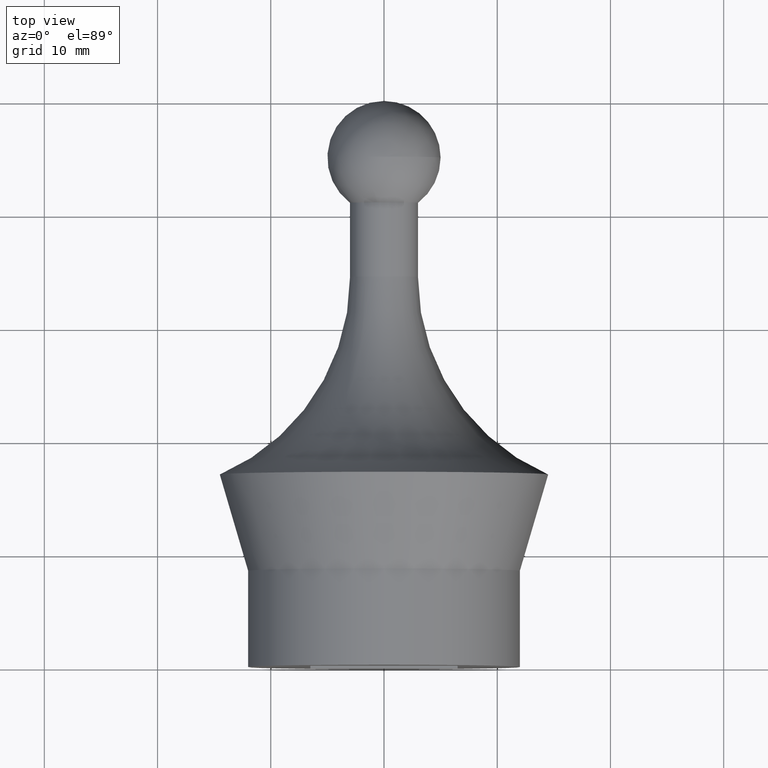
[diagram: clean part render]
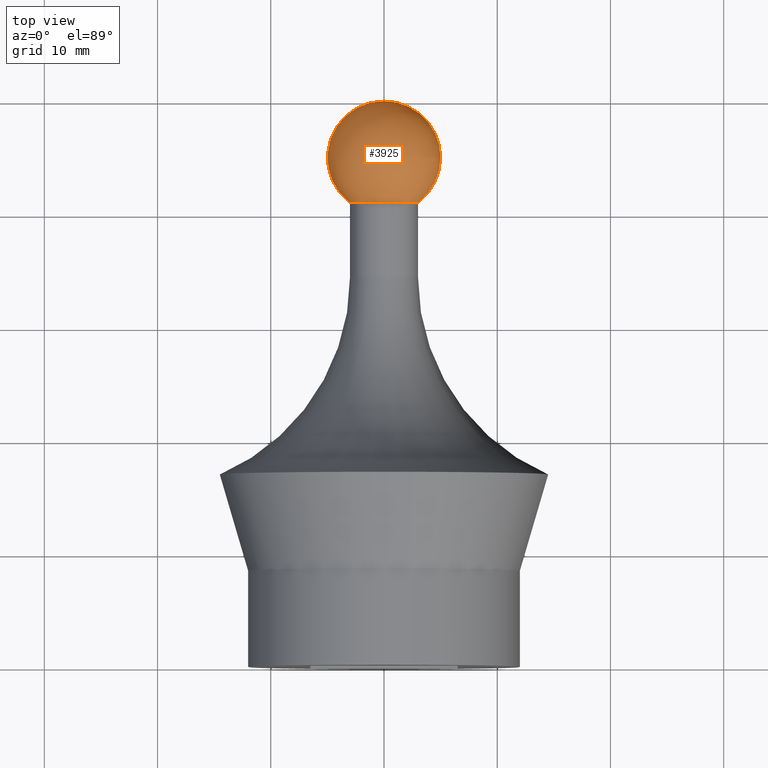
[diagram: same view with one face highlighted and labeled with its STEP entity id]
A machine part, top view. The second image highlights one B-rep face of the part: STEP entity #3925.
In plain terms, the highlighted spherical surface has radius 5 mm.
Its self-contained STEP definition (entity closure, byte-faithful):
#250 = DIRECTION ( 'NONE',  ( -1.000000000000000000, 0.000000000000000000, 0.000000000000000000 ) ) ;
#711 = CARTESIAN_POINT ( 'NONE',  ( 2.510525938252076651E-16, 41.00000000000003553, 0.000000000000000000 ) ) ;
#1265 = EDGE_LOOP ( 'NONE', ( #7349, #5447, #5557 ) ) ;
#1306 = AXIS2_PLACEMENT_3D ( 'NONE', #8395, #1358, #1404 ) ;
#1349 = DIRECTION ( 'NONE',  ( 1.000000000000000000, 0.000000000000000000, 0.000000000000000000 ) ) ;
#1358 = DIRECTION ( 'NONE',  ( 1.224646799147353207E-16, -7.498798913309288894E-34, 1.000000000000000000 ) ) ;
#1404 = DIRECTION ( 'NONE',  ( 1.000000000000000000, 0.000000000000000000, -1.224646799147353454E-16 ) ) ;
#1650 = EDGE_CURVE ( 'NONE', #5108, #9980, #6316, .T. ) ;
#1998 = CARTESIAN_POINT ( 'NONE',  ( 0.000000000000000000, 45.00000000000004263, 0.000000000000000000 ) ) ;
#2192 = DIRECTION ( 'NONE',  ( 0.000000000000000000, 0.000000000000000000, 1.000000000000000000 ) ) ;
#2477 = CIRCLE ( 'NONE', #1306, 5.000000000000004441 ) ;
#2479 = EDGE_CURVE ( 'NONE', #5886, #5108, #3177, .T. ) ;
#2484 = AXIS2_PLACEMENT_3D ( 'NONE', #711, #10313, #5127 ) ;
#3177 = CIRCLE ( 'NONE', #6217, 5.000000000000004441 ) ;
#3925 = ADVANCED_FACE ( 'NONE', ( #4059 ), #8416, .T. ) ;
#4059 = FACE_OUTER_BOUND ( 'NONE', #1265, .T. ) ;
#4899 = CARTESIAN_POINT ( 'NONE',  ( 0.000000000000000000, 45.00000000000004263, 0.000000000000000000 ) ) ;
#5108 = VERTEX_POINT ( 'NONE', #9497 ) ;
#5127 = DIRECTION ( 'NONE',  ( 1.000000000000000000, 0.000000000000000000, 0.000000000000000000 ) ) ;
#5447 = ORIENTED_EDGE ( 'NONE', *, *, #6347, .T. ) ;
#5557 = ORIENTED_EDGE ( 'NONE', *, *, #1650, .F. ) ;
#5886 = VERTEX_POINT ( 'NONE', #5896 ) ;
#5896 = CARTESIAN_POINT ( 'NONE',  ( 3.367778697655224463E-16, 50.00000000000004263, 0.000000000000000000 ) ) ;
#6217 = AXIS2_PLACEMENT_3D ( 'NONE', #1998, #8133, #250 ) ;
#6316 = CIRCLE ( 'NONE', #2484, 3.000000000000002220 ) ;
#6347 = EDGE_CURVE ( 'NONE', #5886, #9980, #2477, .T. ) ;
#7307 = AXIS2_PLACEMENT_3D ( 'NONE', #4899, #2192, #1349 ) ;
#7349 = ORIENTED_EDGE ( 'NONE', *, *, #2479, .F. ) ;
#8133 = DIRECTION ( 'NONE',  ( 0.000000000000000000, 0.000000000000000000, -1.000000000000000000 ) ) ;
#8395 = CARTESIAN_POINT ( 'NONE',  ( 0.000000000000000000, 45.00000000000004263, 0.000000000000000000 ) ) ;
#8416 = SPHERICAL_SURFACE ( 'NONE', #7307, 5.000000000000004441 ) ;
#9497 = CARTESIAN_POINT ( 'NONE',  ( 3.000000000000002665, 41.00000000000003553, 0.000000000000000000 ) ) ;
#9980 = VERTEX_POINT ( 'NONE', #10963 ) ;
#10313 = DIRECTION ( 'NONE',  ( -6.123233995736766344E-18, -1.000000000000000000, -0.000000000000000000 ) ) ;
#10963 = CARTESIAN_POINT ( 'NONE',  ( -3.000000000000001776, 41.00000000000003553, 3.673940397442062826E-16 ) ) ;